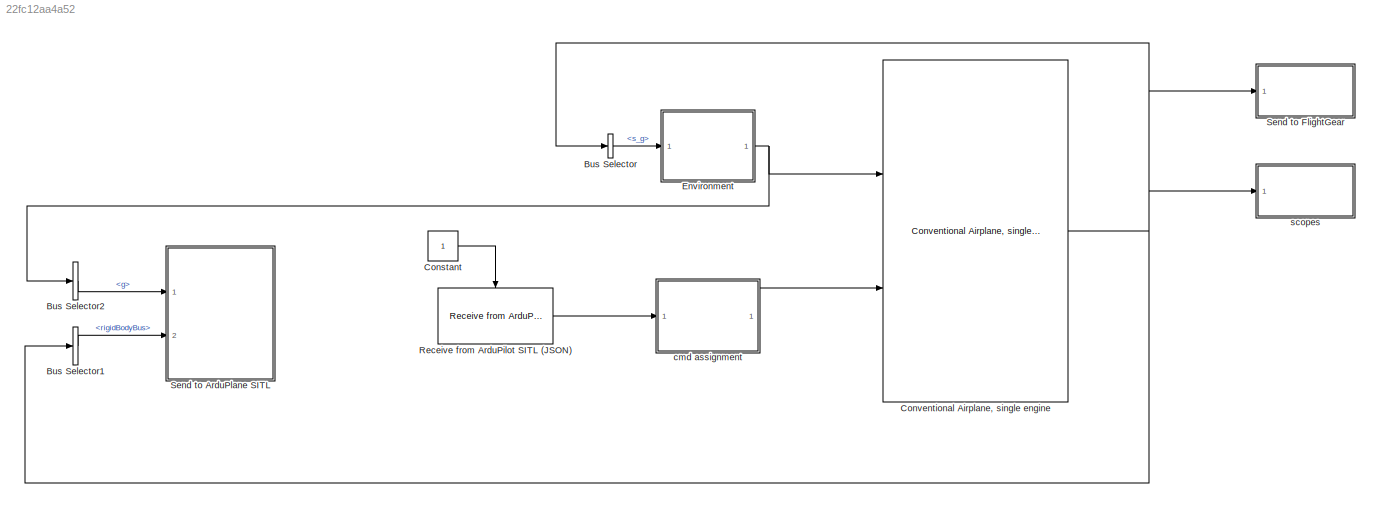
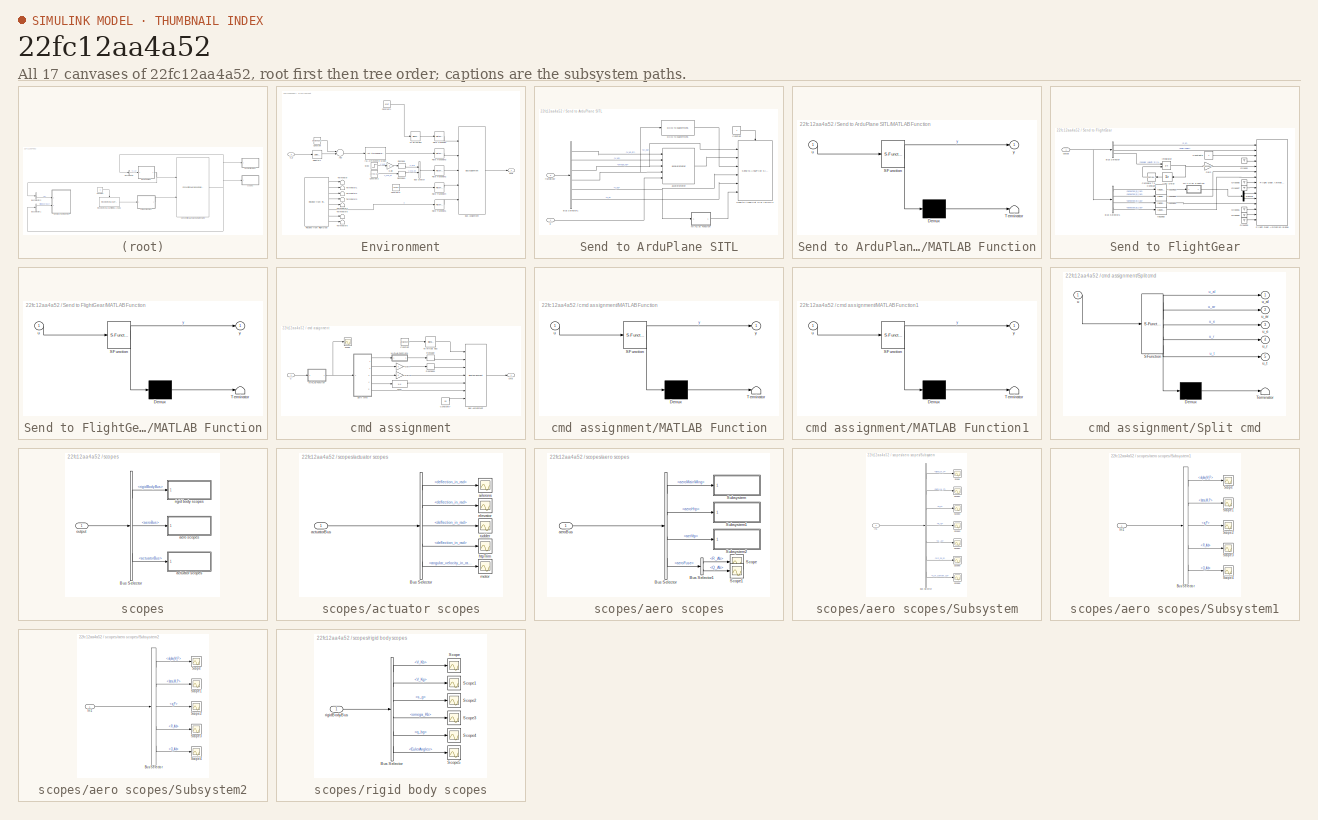
[diagram: thumbnail index - all 17 canvases of the model, root first then tree order]
MODEL slx_22fc12aa4a52
KIND model
CONFIG AbsTol = auto
CONFIG EnableMultiTasking = off
CONFIG FixedStep = 0.0025
CONFIG MaxStep = auto
CONFIG MinStep = auto
CONFIG RelTol = 1e-3
CONFIG SampleTimeConstraint = Unconstrained
CONFIG Solver = ode1
CONFIG SolverName = ode1
CONFIG StartTime = 0.0
CONFIG StopTime = 100.0
BLOCK [BusSelector] Bus Selector
  OutputAsBus = off
  OutputSignals = rigidBodyBus.s_g
  Ports = [1, 1]
BLOCK [BusSelector] Bus Selector1
  OutputAsBus = off
  OutputSignals = rigidBodyBus
  Ports = [1, 1]
BLOCK [BusSelector] Bus Selector2
  OutputAsBus = off
  OutputSignals = g
  Ports = [1, 1]
BLOCK [Constant] Constant
BLOCK [Reference] Conventional Airplane, single engine  REF=conventional_airplane_single_engine_lib/Conventional Airplane,  (lib defined in slx_fd2fac8ad290)
single engine
  Ports = [2, 1]
  SourceBlock = conventional_airplane_single_engine_lib/Conventional Airplane,\nsingle engine
  SourceProductName = LADAC
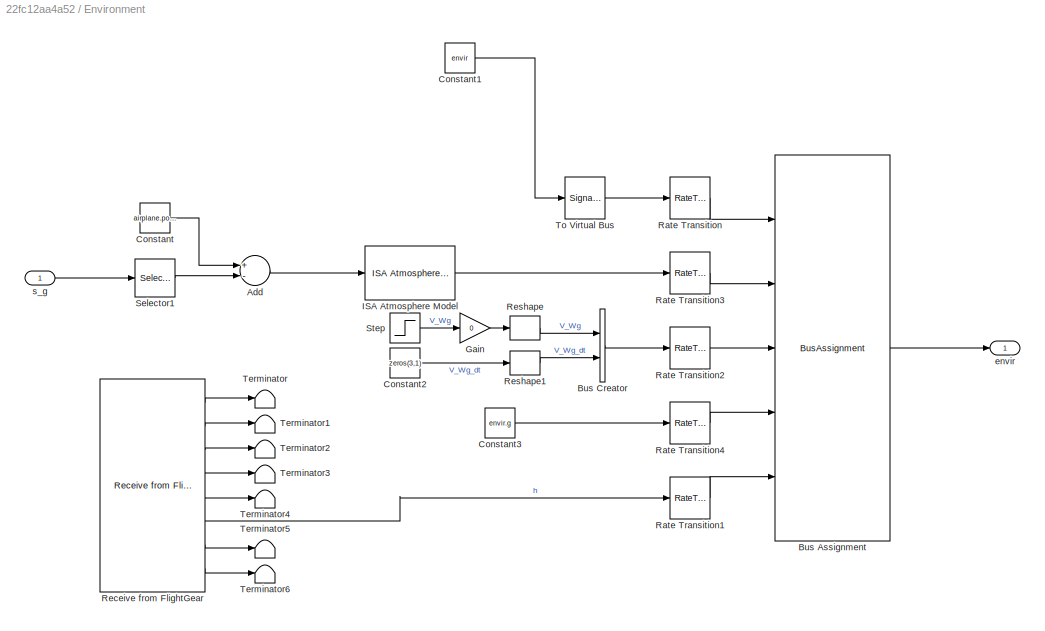
BLOCK [SubSystem] Environment
  Ports = [1, 1]
  RequestExecContextInheritance = off
BLOCK [Sum] Environment/Add
  InputSameDT = off
  Inputs = +-
  OutDataTypeStr = Inherit: Inherit via internal rule
  Ports = [2, 1]
  SaturateOnIntegerOverflow = off
BLOCK [BusAssignment] Environment/Bus Assignment
  AssignedSignals = atmosphere,wind,g,alt_ground
  Ports = [5, 1]
BLOCK [BusCreator] Environment/Bus Creator
  DisplayOption = bar
  InheritFromInputs = on
  Inputs = 2
  Ports = [2, 1]
BLOCK [Constant] Environment/Constant
  Value = airplane.posRef.alt
BLOCK [Constant] Environment/Constant1
  OutDataTypeStr = Bus: envirBus
  Value = envir
BLOCK [Constant] Environment/Constant2
  Value = zeros(3,1)
BLOCK [Constant] Environment/Constant3
  Value = envir.g
BLOCK [Gain] Environment/Gain
  Gain = 0
  OutDataTypeStr = Inherit: Inherit via internal rule
  ParamDataTypeStr = Inherit: Inherit via internal rule
  SaturateOnIntegerOverflow = off
BLOCK [Reference] Environment/ISA Atmosphere Model  REF=atmosphere_lib/ISA Atmosphere Model  (lib defined in slx_398a0eb2fa35)
  Ports = [1, 1]
  SourceBlock = atmosphere_lib/ISA Atmosphere Model
  SourceProductName = LADAC
BLOCK [RateTransition] Environment/Rate Transition
BLOCK [RateTransition] Environment/Rate Transition1
BLOCK [RateTransition] Environment/Rate Transition2
BLOCK [RateTransition] Environment/Rate Transition3
BLOCK [RateTransition] Environment/Rate Transition4
BLOCK [Reference] Environment/Receive from FlightGear  REF=flightgear_visualization_lib/Receive from FlightGear  (lib defined in slx_722f04e3a3fc)
  Ports = [0, 8]
  SourceBlock = flightgear_visualization_lib/Receive from FlightGear
  SourceProductName = LADAC
BLOCK [Reshape] Environment/Reshape
  OutputDimensionality = Column vector (2-D)
  Ports = [1, 1]
BLOCK [Reshape] Environment/Reshape1
  OutputDimensionality = Column vector (2-D)
  Ports = [1, 1]
BLOCK [Selector] Environment/Selector1
  IndexOptions = Index vector (dialog)
  Indices = 3
  InputPortWidth = 3
  OutputSizes = 1
  Ports = [1, 1]
BLOCK [Step] Environment/Step
  After = [0;10;0]
  SampleTime = 0
  Time = 3
BLOCK [Terminator] Environment/Terminator
BLOCK [Terminator] Environment/Terminator1
BLOCK [Terminator] Environment/Terminator2
BLOCK [Terminator] Environment/Terminator3
BLOCK [Terminator] Environment/Terminator4
BLOCK [Terminator] Environment/Terminator5
BLOCK [Terminator] Environment/Terminator6
BLOCK [SignalConversion] Environment/To Virtual Bus
  ConversionOutput = Virtual bus
  OverrideOpt = off
BLOCK [Outport] Environment/envir
  IconDisplay = Port number
BLOCK [Inport] Environment/s_g
  IconDisplay = Port number
BLOCK [Reference] Receive from ArduPilot SITL (JSON)  REF=ardupilot_sitl_lib/Receive from ArduPilot SITL (JSON)  (lib defined in slx_448b01335727)
  Ports = [0, 1, 1]
  SourceBlock = ardupilot_sitl_lib/Receive from ArduPilot SITL (JSON)
  SourceProductName = LADAC
BLOCK [SubSystem] Send to ArduPlane SITL
  Ports = [2]
  RequestExecContextInheritance = off
BLOCK [BusSelector] Send to ArduPlane SITL/Bus Selector1
  OutputAsBus = off
  OutputSignals = V_Kb_dt,V_Kb,omega_Kb,M_bg,V_Kg,s_g
  Ports = [1, 6]
BLOCK [Constant] Send to ArduPlane SITL/Constant
BLOCK [Reference] Send to ArduPlane SITL/DCM to quaternions  REF=axes_transformation_lib/DCM to quaternions  (lib defined in slx_69e2413c78c0)
  Ports = [1, 1]
  SourceBlock = axes_transformation_lib/DCM to quaternions
  SourceProductName = LADAC
  SourceType = SubSystem
BLOCK [SubSystem] Send to ArduPlane SITL/MATLAB Function
  ErrorFcn = Stateflow.Translate.translate
  PermitHierarchicalResolution = ExplicitOnly
  Ports = [1, 1]
  RequestExecContextInheritance = off
  SFBlockType = MATLAB Function
  TreatAsAtomicUnit = on
BLOCK [Demux] Send to ArduPlane SITL/MATLAB Function/ Demux 
  Outputs = 1
  Ports = [1, 1]
BLOCK [S-Function] Send to ArduPlane SITL/MATLAB Function/ SFunction 
  EnableBusSupport = on
  FunctionName = sf_sfun
  PortCounts = [1 2]
  Ports = [1, 2]
  SFcnIsStateOwnerBlock = off
  SFunctionDeploymentMode = off
  Tag = Stateflow S-Function AirplaneSimModel_SITL 2
BLOCK [Terminator] Send to ArduPlane SITL/MATLAB Function/ Terminator 
BLOCK [Inport] Send to ArduPlane SITL/MATLAB Function/u
  IconDisplay = Port number
BLOCK [Outport] Send to ArduPlane SITL/MATLAB Function/y
  IconDisplay = Port number
BLOCK [Reference] Send to ArduPlane SITL/Send to ArduPilot SITL (JSON)1  REF=ardupilot_sitl_lib/Send to ArduPilot SITL (JSON)  (lib defined in slx_448b01335727)
  Ports = [6, 0, 1]
  SourceBlock = ardupilot_sitl_lib/Send to ArduPilot SITL (JSON)
  SourceProductName = LADAC
BLOCK [Reference] Send to ArduPlane SITL/accelerometer  REF=sensors_lib/accelerometer  (lib defined in mdl_052e9be48c24, mdl_88e42053cf8c, +1 more)
  Ports = [5, 1]
  SourceBlock = sensors_lib/accelerometer
  SourceProductName = LADAC
  SourceType = SubSystem
BLOCK [Inport] Send to ArduPlane SITL/g
  IconDisplay = Port number
BLOCK [Inport] Send to ArduPlane SITL/rigidBody
  IconDisplay = Port number
  Port = 2
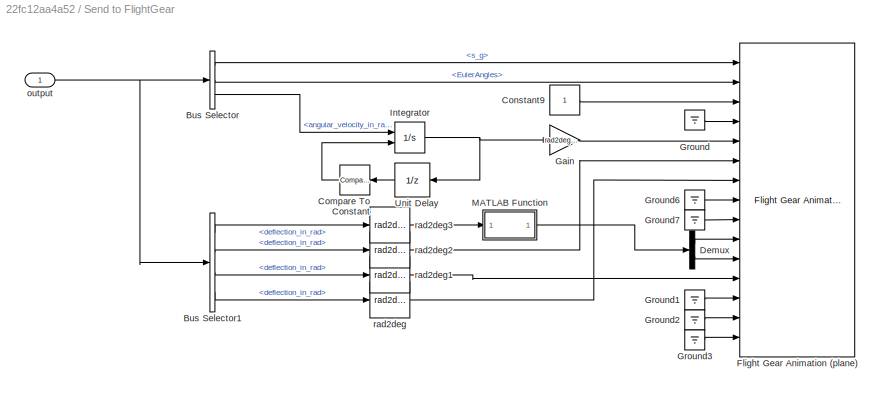
BLOCK [SubSystem] Send to FlightGear
  Ports = [1]
  RequestExecContextInheritance = off
BLOCK [BusSelector] Send to FlightGear/Bus Selector
  OutputAsBus = off
  OutputSignals = rigidBodyBus.s_g,rigidBodyBus.EulerAngles,actuatorBus.motorBus.angular_velocity_in_rad_per_s
  Ports = [1, 3]
BLOCK [BusSelector] Send to FlightGear/Bus Selector1
  OutputAsBus = off
  OutputSignals = actuatorBus.aileronsBus.deflection_in_rad,actuatorBus.elevatorBus.deflection_in_rad,actuatorBus.rudderBus.deflection_in_rad,actuatorBus.htpTrimBus.deflection_in_rad
  Ports = [1, 4]
BLOCK [Reference] Send to FlightGear/Compare To Constant  REF=simulink/Logic and Bit
Operations/Compare
To Constant
  Ports = [1, 1]
  SourceBlock = simulink/Logic and Bit\nOperations/Compare\nTo Constant
  SourceProductBaseCode = SL
  SourceProductName = Simulink
  SourceType = Compare To Constant
BLOCK [Constant] Send to FlightGear/Constant9
BLOCK [Demux] Send to FlightGear/Demux
  DisplayOption = bar
  Outputs = 2
  Ports = [1, 2]
BLOCK [Reference] Send to FlightGear/Flight Gear Animation (plane)  REF=flightgear_visualization_lib/Flight Gear Animation (plane)  (lib defined in slx_722f04e3a3fc)
  Ports = [15]
  SourceBlock = flightgear_visualization_lib/Flight Gear Animation (plane)
  SourceProductName = LADAC
BLOCK [Gain] Send to FlightGear/Gain
  Gain = rad2deg([1;0;0;0])
  OutDataTypeStr = Inherit: Inherit via internal rule
  ParamDataTypeStr = Inherit: Inherit via internal rule
  SaturateOnIntegerOverflow = off
BLOCK [Ground] Send to FlightGear/Ground
BLOCK [Ground] Send to FlightGear/Ground1
BLOCK [Ground] Send to FlightGear/Ground2
BLOCK [Ground] Send to FlightGear/Ground3
BLOCK [Ground] Send to FlightGear/Ground6
BLOCK [Ground] Send to FlightGear/Ground7
BLOCK [Integrator] Send to FlightGear/Integrator
  ExternalReset = rising
  Ports = [2, 1]
BLOCK [SubSystem] Send to FlightGear/MATLAB Function
  ErrorFcn = Stateflow.Translate.translate
  PermitHierarchicalResolution = ExplicitOnly
  Ports = [1, 1]
  RequestExecContextInheritance = off
  SFBlockType = MATLAB Function
  TreatAsAtomicUnit = on
BLOCK [Demux] Send to FlightGear/MATLAB Function/ Demux 
  Outputs = 1
  Ports = [1, 1]
BLOCK [S-Function] Send to FlightGear/MATLAB Function/ SFunction 
  EnableBusSupport = on
  FunctionName = sf_sfun
  PortCounts = [1 2]
  Ports = [1, 2]
  SFcnIsStateOwnerBlock = off
  SFunctionDeploymentMode = off
  Tag = Stateflow S-Function AirplaneSimModel_SITL 3
BLOCK [Terminator] Send to FlightGear/MATLAB Function/ Terminator 
BLOCK [Inport] Send to FlightGear/MATLAB Function/u
  IconDisplay = Port number
BLOCK [Outport] Send to FlightGear/MATLAB Function/y
  IconDisplay = Port number
BLOCK [UnitDelay] Send to FlightGear/Unit Delay
  InputProcessing = Elements as channels (sample based)
  SampleTime = -1
BLOCK [Inport] Send to FlightGear/output
  IconDisplay = Port number
BLOCK [Reference] Send to FlightGear/rad2deg  REF=unit_conversions_lib/rad2deg  (lib defined in slx_ae2855d4d91e)
  Ports = [1, 1]
  SourceBlock = unit_conversions_lib/rad2deg
  SourceProductName = LADAC
BLOCK [Reference] Send to FlightGear/rad2deg1  REF=unit_conversions_lib/rad2deg  (lib defined in slx_ae2855d4d91e)
  Ports = [1, 1]
  SourceBlock = unit_conversions_lib/rad2deg
  SourceProductName = LADAC
BLOCK [Reference] Send to FlightGear/rad2deg2  REF=unit_conversions_lib/rad2deg  (lib defined in slx_ae2855d4d91e)
  Ports = [1, 1]
  SourceBlock = unit_conversions_lib/rad2deg
  SourceProductName = LADAC
BLOCK [Reference] Send to FlightGear/rad2deg3  REF=unit_conversions_lib/rad2deg  (lib defined in slx_ae2855d4d91e)
  Ports = [1, 1]
  SourceBlock = unit_conversions_lib/rad2deg
  SourceProductName = LADAC
BLOCK [SubSystem] cmd assignment
  Ports = [1, 1]
  RequestExecContextInheritance = off
BLOCK [BusAssignment] cmd assignment/Bus Assignment
  AssignedSignals = aileron_left,aileron_right,elevator,rudder,throttle,htp_trim
  Ports = [7, 1]
BLOCK [Constant] cmd assignment/Constant
  OutDataTypeStr = Bus: cmdBus
  Value = airplane.cmd
BLOCK [Constant] cmd assignment/Constant7
  Value = 0.5
BLOCK [Fcn] cmd assignment/Fcn2
  Expr = 1-u
BLOCK [Gain] cmd assignment/Gain
  OutDataTypeStr = Inherit: Inherit via internal rule
  ParamDataTypeStr = Inherit: Inherit via internal rule
  SaturateOnIntegerOverflow = off
BLOCK [Gain] cmd assignment/Gain1
  OutDataTypeStr = Inherit: Inherit via internal rule
  ParamDataTypeStr = Inherit: Inherit via internal rule
  SaturateOnIntegerOverflow = off
BLOCK [SubSystem] cmd assignment/MATLAB Function
  ErrorFcn = Stateflow.Translate.translate
  PermitHierarchicalResolution = ExplicitOnly
  Ports = [1, 1]
  RequestExecContextInheritance = off
  SFBlockType = MATLAB Function
  TreatAsAtomicUnit = on
BLOCK [Demux] cmd assignment/MATLAB Function/ Demux 
  Outputs = 1
  Ports = [1, 1]
BLOCK [S-Function] cmd assignment/MATLAB Function/ SFunction 
  EnableBusSupport = on
  FunctionName = sf_sfun
  PortCounts = [1 2]
  Ports = [1, 2]
  SFcnIsStateOwnerBlock = off
  SFunctionDeploymentMode = off
  Tag = Stateflow S-Function AirplaneSimModel_SITL 4
BLOCK [Terminator] cmd assignment/MATLAB Function/ Terminator 
BLOCK [Inport] cmd assignment/MATLAB Function/u
  IconDisplay = Port number
BLOCK [Outport] cmd assignment/MATLAB Function/y
  IconDisplay = Port number
BLOCK [SubSystem] cmd assignment/MATLAB Function1
  ErrorFcn = Stateflow.Translate.translate
  PermitHierarchicalResolution = ExplicitOnly
  Ports = [1, 1]
  RequestExecContextInheritance = off
  SFBlockType = MATLAB Function
  TreatAsAtomicUnit = on
BLOCK [Demux] cmd assignment/MATLAB Function1/ Demux 
  Outputs = 1
  Ports = [1, 1]
BLOCK [S-Function] cmd assignment/MATLAB Function1/ SFunction 
  EnableBusSupport = on
  FunctionName = sf_sfun
  PortCounts = [1 2]
  Ports = [1, 2]
  SFcnIsStateOwnerBlock = off
  SFunctionDeploymentMode = off
  Tag = Stateflow S-Function AirplaneSimModel_SITL 1
BLOCK [Terminator] cmd assignment/MATLAB Function1/ Terminator 
BLOCK [Inport] cmd assignment/MATLAB Function1/u
  IconDisplay = Port number
BLOCK [Outport] cmd assignment/MATLAB Function1/y
  IconDisplay = Port number
BLOCK [Reshape] cmd assignment/Reshape
  OutputDimensionality = Row vector (2-D)
  Ports = [1, 1]
BLOCK [Reshape] cmd assignment/Reshape1
  OutputDimensionality = Row vector (2-D)
  Ports = [1, 1]
BLOCK [Scope] cmd assignment/Scope
  Floating = off
  NumInputPorts = 1
  Ports = [1]
  ScopeSpecificationString = Simulink.scopes.TimeScopeBlockCfg('CurrentConfiguration', extmgr.ConfigurationSet(extmgr.Configuration('Core','General UI',true),extmgr.Configuration('Core','Source UI',true),extmgr.Configuration('Sources','WiredSimulink',true,'DataLoggingVariableName','ScopeData1'),extmgr.Configuration('Visuals','Time Domain',true,'SerializedDisplays',{struct('MinYLimReal','-0.00016','MaxYLimReal','0.00141','YLab...<+1929ch>
BLOCK [SubSystem] cmd assignment/Split cmd
  ErrorFcn = Stateflow.Translate.translate
  PermitHierarchicalResolution = ExplicitOnly
  Ports = [1, 5]
  RequestExecContextInheritance = off
  SFBlockType = MATLAB Function
  TreatAsAtomicUnit = on
BLOCK [Demux] cmd assignment/Split cmd/ Demux 
  Outputs = 1
  Ports = [1, 1]
BLOCK [S-Function] cmd assignment/Split cmd/ SFunction 
  EnableBusSupport = on
  FunctionName = sf_sfun
  PortCounts = [1 6]
  Ports = [1, 6]
  SFcnIsStateOwnerBlock = off
  SFunctionDeploymentMode = off
  Tag = Stateflow S-Function AirplaneSimModel_SITL 5
BLOCK [Terminator] cmd assignment/Split cmd/ Terminator 
BLOCK [Inport] cmd assignment/Split cmd/u
  IconDisplay = Port number
BLOCK [Outport] cmd assignment/Split cmd/u_al
  IconDisplay = Port number
BLOCK [Outport] cmd assignment/Split cmd/u_ar
  IconDisplay = Port number
  Port = 2
BLOCK [Outport] cmd assignment/Split cmd/u_e
  IconDisplay = Port number
  Port = 3
BLOCK [Outport] cmd assignment/Split cmd/u_r
  IconDisplay = Port number
  Port = 4
BLOCK [Outport] cmd assignment/Split cmd/u_t
  IconDisplay = Port number
  Port = 5
BLOCK [SignalConversion] cmd assignment/To Virtual Bus
  ConversionOutput = Virtual bus
  OverrideOpt = off
BLOCK [Outport] cmd assignment/cmd
  IconDisplay = Port number
BLOCK [Inport] cmd assignment/u
  IconDisplay = Port number
BLOCK [SubSystem] scopes
  Ports = [1]
  RequestExecContextInheritance = off
BLOCK [BusSelector] scopes/Bus Selector
  OutputAsBus = off
  OutputSignals = rigidBodyBus,aeroBus,actuatorBus
  Ports = [1, 3]
BLOCK [SubSystem] scopes/actuator scopes
  Ports = [1]
  RequestExecContextInheritance = off
BLOCK [BusSelector] scopes/actuator scopes/Bus Selector
  OutputAsBus = off
  OutputSignals = aileronsBus.deflection_in_rad,elevatorBus.deflection_in_rad,rudderBus.deflection_in_rad,htpTrimBus.deflection_in_rad,motorBus.angular_velocity_in_rad_per_s
  Ports = [1, 5]
BLOCK [Inport] scopes/actuator scopes/actuatorBus
  IconDisplay = Port number
BLOCK [Scope] scopes/actuator scopes/ailerons
  Floating = off
  NumInputPorts = 1
  Ports = [1]
  ScopeSpecificationString = Simulink.scopes.TimeScopeBlockCfg('CurrentConfiguration', extmgr.ConfigurationSet(extmgr.Configuration('Core','General UI',true),extmgr.Configuration('Core','Source UI',true),extmgr.Configuration('Sources','WiredSimulink',true,'DataLoggingVariableName','ScopeData1'),extmgr.Configuration('Visuals','Time Domain',true,'SerializedDisplays',{struct('MinYLimReal','-0.53451','MaxYLimReal','0.44724','YLab...<+1502ch>
BLOCK [Scope] scopes/actuator scopes/elevator
  Floating = off
  NumInputPorts = 1
  Ports = [1]
  ScopeSpecificationString = Simulink.scopes.TimeScopeBlockCfg('CurrentConfiguration', extmgr.ConfigurationSet(extmgr.Configuration('Core','General UI',true),extmgr.Configuration('Core','Source UI',true),extmgr.Configuration('Sources','WiredSimulink',true,'DataLoggingVariableName','ScopeData2'),extmgr.Configuration('Visuals','Time Domain',true,'SerializedDisplays',{struct('MinYLimReal','-0.08767','MaxYLimReal','0.09093','YLab...<+1433ch>
BLOCK [Scope] scopes/actuator scopes/htpTrim
  Floating = off
  NumInputPorts = 1
  Ports = [1]
  ScopeSpecificationString = Simulink.scopes.TimeScopeBlockCfg('CurrentConfiguration', extmgr.ConfigurationSet(extmgr.Configuration('Core','General UI',true),extmgr.Configuration('Core','Source UI',true),extmgr.Configuration('Sources','WiredSimulink',true,'DataLoggingVariableName','ScopeData4'),extmgr.Configuration('Visuals','Time Domain',true,'SerializedDisplays',{struct('MinYLimReal','-0.00393','MaxYLimReal','0.03536','YLab...<+1422ch>
BLOCK [Scope] scopes/actuator scopes/motor
  Floating = off
  NumInputPorts = 1
  Ports = [1]
  ScopeSpecificationString = Simulink.scopes.TimeScopeBlockCfg('CurrentConfiguration', extmgr.ConfigurationSet(extmgr.Configuration('Core','General UI',true),extmgr.Configuration('Core','Source UI',true),extmgr.Configuration('Sources','WiredSimulink',true,'DataLoggingVariableName','ScopeData5'),extmgr.Configuration('Visuals','Time Domain',true,'SerializedDisplays',{struct('MinYLimReal','-152.43792','MaxYLimReal','16.93891','Y...<+1427ch>
BLOCK [Scope] scopes/actuator scopes/rudder
  Floating = off
  NumInputPorts = 1
  Ports = [1]
  ScopeSpecificationString = Simulink.scopes.TimeScopeBlockCfg('CurrentConfiguration', extmgr.ConfigurationSet(extmgr.Configuration('Core','General UI',true),extmgr.Configuration('Core','Source UI',true),extmgr.Configuration('Sources','WiredSimulink',true,'DataLoggingVariableName','ScopeData3'),extmgr.Configuration('Visuals','Time Domain',true,'SerializedDisplays',{struct('MinYLimReal','-0.1315','MaxYLimReal','0.13639','YLabe...<+1376ch>
BLOCK [SubSystem] scopes/aero scopes
  Commented = on
  Ports = [1]
  RequestExecContextInheritance = off
BLOCK [BusSelector] scopes/aero scopes/Bus Selector
  OutputAsBus = off
  OutputSignals = aeroMainWing,aeroHtp,aerVtp,aeroFuse
  Ports = [1, 4]
BLOCK [BusSelector] scopes/aero scopes/Bus Selector1
  OutputAsBus = off
  OutputSignals = R_Ab,Q_Ab
  Ports = [1, 2]
BLOCK [Scope] scopes/aero scopes/Scope
  Floating = off
  NumInputPorts = 1
  Ports = [1]
  ScopeSpecificationString = Simulink.scopes.TimeScopeBlockCfg('CurrentConfiguration', extmgr.ConfigurationSet(extmgr.Configuration('Core','General UI',true),extmgr.Configuration('Core','Source UI',true),extmgr.Configuration('Sources','WiredSimulink',true,'DataLoggingVariableName','ScopeData8'),extmgr.Configuration('Visuals','Time Domain',true,'SerializedDisplays',{struct('MinYLimReal','-0.91646','MaxYLimReal','0.40451','YLab...<+1441ch>
BLOCK [Scope] scopes/aero scopes/Scope1
  Floating = off
  NumInputPorts = 1
  Ports = [1]
  ScopeSpecificationString = Simulink.scopes.TimeScopeBlockCfg('CurrentConfiguration', extmgr.ConfigurationSet(extmgr.Configuration('Core','General UI',true),extmgr.Configuration('Core','Source UI',true),extmgr.Configuration('Sources','WiredSimulink',true,'DataLoggingVariableName','ScopeData9'),extmgr.Configuration('Visuals','Time Domain',true,'SerializedDisplays',{struct('MinYLimReal','-0.00779','MaxYLimReal','0.00515','YLab...<+1460ch>
BLOCK [SubSystem] scopes/aero scopes/Subsystem
  Ports = [1]
  RequestExecContextInheritance = off
BLOCK [BusSelector] scopes/aero scopes/Subsystem/Bus Selector
  OutputAsBus = off
  OutputSignals = aeroAxes.alpha_M_P,aeroAxes.beta_M_P,aeroAxes.q_P,dynamics.R_Ab,dynamics.Q_Ab,dynamics.xyz_np_b,dynamics.C_m_camber_cg
  Ports = [1, 7]
BLOCK [Inport] scopes/aero scopes/Subsystem/In1
  IconDisplay = Port number
BLOCK [Scope] scopes/aero scopes/Subsystem/Scope
  Floating = off
  NumInputPorts = 1
  Ports = [1]
  ScopeSpecificationString = Simulink.scopes.TimeScopeBlockCfg('CurrentConfiguration', extmgr.ConfigurationSet(extmgr.Configuration('Core','General UI',true),extmgr.Configuration('Core','Source UI',true),extmgr.Configuration('Sources','WiredSimulink',true,'DataLoggingVariableName','ScopeData3'),extmgr.Configuration('Visuals','Time Domain',true,'SerializedDisplays',{struct('MinYLimReal','-0.07904','MaxYLimReal','0.46983','YLab...<+1432ch>
BLOCK [Scope] scopes/aero scopes/Subsystem/Scope1
  Floating = off
  NumInputPorts = 1
  Ports = [1]
  ScopeSpecificationString = Simulink.scopes.TimeScopeBlockCfg('CurrentConfiguration', extmgr.ConfigurationSet(extmgr.Configuration('Core','General UI',true),extmgr.Configuration('Core','Source UI',true),extmgr.Configuration('Sources','WiredSimulink',true,'DataLoggingVariableName','ScopeData4'),extmgr.Configuration('Visuals','Time Domain',true,'SerializedDisplays',{struct('MinYLimReal','-0.33134','MaxYLimReal','0.51679','YLab...<+1411ch>
BLOCK [Scope] scopes/aero scopes/Subsystem/Scope2
  Floating = off
  NumInputPorts = 1
  Ports = [1]
  ScopeSpecificationString = Simulink.scopes.TimeScopeBlockCfg('CurrentConfiguration', extmgr.ConfigurationSet(extmgr.Configuration('Core','General UI',true),extmgr.Configuration('Core','Source UI',true),extmgr.Configuration('Sources','WiredSimulink',true,'DataLoggingVariableName','ScopeData5'),extmgr.Configuration('Visuals','Time Domain',true),extmgr.Configuration('Tools','Plot Navigation',true),extmgr.Configuration('Tools',...<+40ch>  <repeated x3 — deduplicated; at blocks: Scope2, Scope4>
BLOCK [Scope] scopes/aero scopes/Subsystem/Scope3
  Floating = off
  NumInputPorts = 1
  Ports = [1]
  ScopeSpecificationString = Simulink.scopes.TimeScopeBlockCfg('CurrentConfiguration', extmgr.ConfigurationSet(extmgr.Configuration('Core','General UI',true),extmgr.Configuration('Core','Source UI',true),extmgr.Configuration('Sources','WiredSimulink',true,'DataLoggingVariableName','ScopeData6'),extmgr.Configuration('Visuals','Time Domain',true,'SerializedDisplays',{struct('MinYLimReal','-44.41944','MaxYLimReal','10.15561','YL...<+1450ch>
BLOCK [Scope] scopes/aero scopes/Subsystem/Scope4
  Floating = off
  NumInputPorts = 1
  Ports = [1]
  ScopeSpecificationString = Simulink.scopes.TimeScopeBlockCfg('CurrentConfiguration', extmgr.ConfigurationSet(extmgr.Configuration('Core','General UI',true),extmgr.Configuration('Core','Source UI',true),extmgr.Configuration('Sources','WiredSimulink',true,'DataLoggingVariableName','ScopeData7'),extmgr.Configuration('Visuals','Time Domain',true,'SerializedDisplays',{struct('MinYLimReal','-1.14355','MaxYLimReal','0.48604','YLab...<+1458ch>
BLOCK [Scope] scopes/aero scopes/Subsystem/Scope5
  Floating = off
  NumInputPorts = 1
  Ports = [1]
  ScopeSpecificationString = Simulink.scopes.TimeScopeBlockCfg('CurrentConfiguration', extmgr.ConfigurationSet(extmgr.Configuration('Core','General UI',true),extmgr.Configuration('Core','Source UI',true),extmgr.Configuration('Sources','WiredSimulink',true,'DataLoggingVariableName','ScopeData12'),extmgr.Configuration('Visuals','Time Domain',true,'SerializedDisplays',{struct('MinYLimReal','-0.7438','MaxYLimReal','0.72425','YLab...<+1652ch>
BLOCK [Scope] scopes/aero scopes/Subsystem/Scope6
  Floating = off
  NumInputPorts = 1
  Ports = [1]
  ScopeSpecificationString = Simulink.scopes.TimeScopeBlockCfg('CurrentConfiguration', extmgr.ConfigurationSet(extmgr.Configuration('Core','General UI',true),extmgr.Configuration('Core','Source UI',true),extmgr.Configuration('Sources','WiredSimulink',true,'DataLoggingVariableName','ScopeData1'),extmgr.Configuration('Visuals','Time Domain',true,'SerializedDisplays',{struct('MinYLimReal','-0.11083','MaxYLimReal','0.05149','YLab...<+1602ch>
BLOCK [SubSystem] scopes/aero scopes/Subsystem1
  Ports = [1]
  RequestExecContextInheritance = off
BLOCK [BusSelector] scopes/aero scopes/Subsystem1/Bus Selector
  OutputAsBus = off
  OutputSignals = aeroAxes.alpha_M_P,aeroAxes.beta_M_P,aeroAxes.q_P,dynamics.R_Ab,dynamics.Q_Ab
  Ports = [1, 5]
BLOCK [Inport] scopes/aero scopes/Subsystem1/In1
  IconDisplay = Port number
BLOCK [Scope] scopes/aero scopes/Subsystem1/Scope
  Floating = off
  NumInputPorts = 1
  Ports = [1]
  ScopeSpecificationString = Simulink.scopes.TimeScopeBlockCfg('CurrentConfiguration', extmgr.ConfigurationSet(extmgr.Configuration('Core','General UI',true),extmgr.Configuration('Core','Source UI',true),extmgr.Configuration('Sources','WiredSimulink',true,'DataLoggingVariableName','ScopeData3'),extmgr.Configuration('Visuals','Time Domain',true,'SerializedDisplays',{struct('MinYLimReal','-0.03108','MaxYLimReal','0.08387','YLab...<+1432ch>
BLOCK [Scope] scopes/aero scopes/Subsystem1/Scope1
  Floating = off
  NumInputPorts = 1
  Ports = [1]
  ScopeSpecificationString = Simulink.scopes.TimeScopeBlockCfg('CurrentConfiguration', extmgr.ConfigurationSet(extmgr.Configuration('Core','General UI',true),extmgr.Configuration('Core','Source UI',true),extmgr.Configuration('Sources','WiredSimulink',true,'DataLoggingVariableName','ScopeData4'),extmgr.Configuration('Visuals','Time Domain',true,'SerializedDisplays',{struct('MinYLimReal','-0.40678','MaxYLimReal','0.98354','YLab...<+1430ch>
BLOCK [Scope] scopes/aero scopes/Subsystem1/Scope2
  Floating = off
  NumInputPorts = 1
  Ports = [1]
  ScopeSpecificationString = Simulink.scopes.TimeScopeBlockCfg('CurrentConfiguration', extmgr.ConfigurationSet(extmgr.Configuration('Core','General UI',true),extmgr.Configuration('Core','Source UI',true),extmgr.Configuration('Sources','WiredSimulink',true,'DataLoggingVariableName','ScopeData5'),extmgr.Configuration('Visuals','Time Domain',true,'SerializedDisplays',{struct('MinYLimReal','165.0715','MaxYLimReal','265.67716','YL...<+1386ch>
BLOCK [Scope] scopes/aero scopes/Subsystem1/Scope3
  Floating = off
  NumInputPorts = 1
  Ports = [1]
  ScopeSpecificationString = Simulink.scopes.TimeScopeBlockCfg('CurrentConfiguration', extmgr.ConfigurationSet(extmgr.Configuration('Core','General UI',true),extmgr.Configuration('Core','Source UI',true),extmgr.Configuration('Sources','WiredSimulink',true,'DataLoggingVariableName','ScopeData6'),extmgr.Configuration('Visuals','Time Domain',true,'SerializedDisplays',{struct('MinYLimReal','-1.25595','MaxYLimReal','0.52297','YLab...<+1431ch>
BLOCK [Scope] scopes/aero scopes/Subsystem1/Scope4
  Floating = off
  NumInputPorts = 1
  Ports = [1]
  ScopeSpecificationString = Simulink.scopes.TimeScopeBlockCfg('CurrentConfiguration', extmgr.ConfigurationSet(extmgr.Configuration('Core','General UI',true),extmgr.Configuration('Core','Source UI',true),extmgr.Configuration('Sources','WiredSimulink',true,'DataLoggingVariableName','ScopeData7'),extmgr.Configuration('Visuals','Time Domain',true,'SerializedDisplays',{struct('MinYLimReal','-1.24313','MaxYLimReal','0.67063','YLab...<+1458ch>
BLOCK [SubSystem] scopes/aero scopes/Subsystem2
  Ports = [1]
  RequestExecContextInheritance = off
BLOCK [BusSelector] scopes/aero scopes/Subsystem2/Bus Selector
  OutputAsBus = off
  OutputSignals = aeroAxes.alpha_M_P,aeroAxes.beta_M_P,aeroAxes.q_P,dynamicsBody.R_Ab,dynamicsBody.Q_Ab
  Ports = [1, 5]
BLOCK [Inport] scopes/aero scopes/Subsystem2/In1
  IconDisplay = Port number
BLOCK [Scope] scopes/aero scopes/Subsystem2/Scope
  Floating = off
  NumInputPorts = 1
  Ports = [1]
  ScopeSpecificationString = Simulink.scopes.TimeScopeBlockCfg('CurrentConfiguration', extmgr.ConfigurationSet(extmgr.Configuration('Core','General UI',true),extmgr.Configuration('Core','Source UI',true),extmgr.Configuration('Sources','WiredSimulink',true,'DataLoggingVariableName','ScopeData3'),extmgr.Configuration('Visuals','Time Domain',true,'SerializedDisplays',{struct('MinYLimReal','-0.0139','MaxYLimReal','0.08021','YLabe...<+1430ch>
BLOCK [Scope] scopes/aero scopes/Subsystem2/Scope1
  Floating = off
  NumInputPorts = 1
  Ports = [1]
  ScopeSpecificationString = Simulink.scopes.TimeScopeBlockCfg('CurrentConfiguration', extmgr.ConfigurationSet(extmgr.Configuration('Core','General UI',true),extmgr.Configuration('Core','Source UI',true),extmgr.Configuration('Sources','WiredSimulink',true,'DataLoggingVariableName','ScopeData4'),extmgr.Configuration('Visuals','Time Domain',true,'SerializedDisplays',{struct('MinYLimReal','-0.0045','MaxYLimReal','0.04047','YLabe...<+1428ch>
BLOCK [Scope] scopes/aero scopes/Subsystem2/Scope2
  Floating = off
  NumInputPorts = 1
  Ports = [1]
BLOCK [Scope] scopes/aero scopes/Subsystem2/Scope3
  Floating = off
  NumInputPorts = 1
  Ports = [1]
  ScopeSpecificationString = Simulink.scopes.TimeScopeBlockCfg('CurrentConfiguration', extmgr.ConfigurationSet(extmgr.Configuration('Core','General UI',true),extmgr.Configuration('Core','Source UI',true),extmgr.Configuration('Sources','WiredSimulink',true,'DataLoggingVariableName','ScopeData6'),extmgr.Configuration('Visuals','Time Domain',true,'SerializedDisplays',{struct('MinYLimReal','-0.28199','MaxYLimReal','0.15437','YLab...<+1461ch>
BLOCK [Scope] scopes/aero scopes/Subsystem2/Scope4
  Floating = off
  NumInputPorts = 1
  Ports = [1]
  ScopeSpecificationString = Simulink.scopes.TimeScopeBlockCfg('CurrentConfiguration', extmgr.ConfigurationSet(extmgr.Configuration('Core','General UI',true),extmgr.Configuration('Core','Source UI',true),extmgr.Configuration('Sources','WiredSimulink',true,'DataLoggingVariableName','ScopeData7'),extmgr.Configuration('Visuals','Time Domain',true,'SerializedDisplays',{struct('MinYLimReal','-2.40802','MaxYLimReal','1.96386','YLab...<+1529ch>
BLOCK [Inport] scopes/aero scopes/aeroBus
  IconDisplay = Port number
BLOCK [Inport] scopes/output
  IconDisplay = Port number
BLOCK [SubSystem] scopes/rigid body scopes
  Ports = [1]
  RequestExecContextInheritance = off
BLOCK [BusSelector] scopes/rigid body scopes/Bus Selector
  OutputAsBus = off
  OutputSignals = V_Kb,V_Kg,s_g,omega_Kb,q_bg,EulerAngles
  Ports = [1, 6]
BLOCK [Scope] scopes/rigid body scopes/Scope
  Floating = off
  NumInputPorts = 1
  Ports = [1]
  ScopeSpecificationString = Simulink.scopes.TimeScopeBlockCfg('CurrentConfiguration', extmgr.ConfigurationSet(extmgr.Configuration('Core','General UI',true),extmgr.Configuration('Core','Source UI',true),extmgr.Configuration('Sources','WiredSimulink',true,'DataLoggingVariableName','ScopeData1'),extmgr.Configuration('Visuals','Time Domain',true,'SerializedDisplays',{struct('MinYLimReal','-6.20728','MaxYLimReal','25.66694','YLa...<+1418ch>
BLOCK [Scope] scopes/rigid body scopes/Scope1
  Floating = off
  NumInputPorts = 1
  Ports = [1]
  ScopeSpecificationString = Simulink.scopes.TimeScopeBlockCfg('CurrentConfiguration', extmgr.ConfigurationSet(extmgr.Configuration('Core','General UI',true),extmgr.Configuration('Core','Source UI',true),extmgr.Configuration('Sources','WiredSimulink',true,'DataLoggingVariableName','ScopeData2'),extmgr.Configuration('Visuals','Time Domain',true),extmgr.Configuration('Tools','Plot Navigation',true),extmgr.Configuration('Tools',...<+40ch>
BLOCK [Scope] scopes/rigid body scopes/Scope2
  Floating = off
  NumInputPorts = 1
  Ports = [1]
  ScopeSpecificationString = Simulink.scopes.TimeScopeBlockCfg('CurrentConfiguration', extmgr.ConfigurationSet(extmgr.Configuration('Core','General UI',true),extmgr.Configuration('Core','Source UI',true),extmgr.Configuration('Sources','WiredSimulink',true,'DataLoggingVariableName','ScopeData3'),extmgr.Configuration('Visuals','Time Domain',true,'SerializedDisplays',{struct('MinYLimReal','-5.62513','MaxYLimReal','0.62618','YLab...<+1386ch>
BLOCK [Scope] scopes/rigid body scopes/Scope3
  Floating = off
  NumInputPorts = 1
  Ports = [1]
  ScopeSpecificationString = Simulink.scopes.TimeScopeBlockCfg('CurrentConfiguration', extmgr.ConfigurationSet(extmgr.Configuration('Core','General UI',true),extmgr.Configuration('Core','Source UI',true),extmgr.Configuration('Sources','WiredSimulink',true,'DataLoggingVariableName','ScopeData4'),extmgr.Configuration('Visuals','Time Domain',true,'SerializedDisplays',{struct('MinYLimReal','-0.23396','MaxYLimReal','0.30806','YLab...<+1426ch>
BLOCK [Scope] scopes/rigid body scopes/Scope4
  Floating = off
  NumInputPorts = 1
  Ports = [1]
BLOCK [Scope] scopes/rigid body scopes/Scope5
  Floating = off
  NumInputPorts = 1
  Ports = [1]
  ScopeSpecificationString = Simulink.scopes.TimeScopeBlockCfg('CurrentConfiguration', extmgr.ConfigurationSet(extmgr.Configuration('Core','General UI',true),extmgr.Configuration('Core','Source UI',true),extmgr.Configuration('Sources','WiredSimulink',true,'DataLoggingVariableName','ScopeData6'),extmgr.Configuration('Visuals','Time Domain',true,'SerializedDisplays',{struct('MinYLimReal','-0.3003','MaxYLimReal','0.10645','YLabe...<+1431ch>
BLOCK [Inport] scopes/rigid body scopes/rigidBodyBus
  IconDisplay = Port number
LINE Bus Selector1:1 -> Send to ArduPlane SITL:2
LINE Bus Selector2:1 -> Send to ArduPlane SITL:1
LINE Bus Selector:1 -> Environment:1
LINE Constant:1 -> Receive from ArduPilot SITL (JSON):enable
NET Conventional Airplane, single engine:1 -> Bus Selector1:1, Bus Selector:1, Send to FlightGear:1, scopes:1
LINE Environment/Add:1 -> Environment/ISA Atmosphere Model:1
LINE Environment/Bus Assignment:1 -> Environment/envir:1
LINE Environment/Bus Creator:1 -> Environment/Rate Transition2:1
LINE Environment/Constant1:1 -> Environment/To Virtual Bus:1
LINE Environment/Constant2:1 -> Environment/Reshape1:1
LINE Environment/Constant3:1 -> Environment/Rate Transition4:1
LINE Environment/Constant:1 -> Environment/Add:1
LINE Environment/Gain:1 -> Environment/Reshape:1
LINE Environment/ISA Atmosphere Model:1 -> Environment/Rate Transition3:1
LINE Environment/Rate Transition1:1 -> Environment/Bus Assignment:5
LINE Environment/Rate Transition2:1 -> Environment/Bus Assignment:3
LINE Environment/Rate Transition3:1 -> Environment/Bus Assignment:2
LINE Environment/Rate Transition4:1 -> Environment/Bus Assignment:4
LINE Environment/Rate Transition:1 -> Environment/Bus Assignment:1
LINE Environment/Receive from FlightGear:1 -> Environment/Terminator:1
LINE Environment/Receive from FlightGear:2 -> Environment/Terminator1:1
LINE Environment/Receive from FlightGear:3 -> Environment/Terminator2:1
LINE Environment/Receive from FlightGear:4 -> Environment/Terminator3:1
LINE Environment/Receive from FlightGear:5 -> Environment/Terminator4:1
LINE Environment/Receive from FlightGear:6 -> Environment/Rate Transition1:1
LINE Environment/Receive from FlightGear:7 -> Environment/Terminator5:1
LINE Environment/Receive from FlightGear:8 -> Environment/Terminator6:1
LINE Environment/Reshape1:1 -> Environment/Bus Creator:2
LINE Environment/Reshape:1 -> Environment/Bus Creator:1
LINE Environment/Selector1:1 -> Environment/Add:2
LINE Environment/Step:1 -> Environment/Gain:1
LINE Environment/To Virtual Bus:1 -> Environment/Rate Transition:1
LINE Environment/s_g:1 -> Environment/Selector1:1
NET Environment:1 -> Bus Selector2:1, Conventional Airplane, single engine:1
LINE Receive from ArduPilot SITL (JSON):1 -> cmd assignment:1
LINE Send to ArduPlane SITL/Bus Selector1:1 -> Send to ArduPlane SITL/accelerometer:1
LINE Send to ArduPlane SITL/Bus Selector1:2 -> Send to ArduPlane SITL/accelerometer:2
NET Send to ArduPlane SITL/Bus Selector1:3 -> Send to ArduPlane SITL/Send to ArduPilot SITL (JSON)1:1, Send to ArduPlane SITL/accelerometer:3
NET Send to ArduPlane SITL/Bus Selector1:4 -> Send to ArduPlane SITL/DCM to quaternions:1, Send to ArduPlane SITL/accelerometer:4
NET Send to ArduPlane SITL/Bus Selector1:5 -> Send to ArduPlane SITL/MATLAB Function:1, Send to ArduPlane SITL/Send to ArduPilot SITL (JSON)1:4
LINE Send to ArduPlane SITL/Bus Selector1:6 -> Send to ArduPlane SITL/Send to ArduPilot SITL (JSON)1:5
LINE Send to ArduPlane SITL/Constant:1 -> Send to ArduPlane SITL/Send to ArduPilot SITL (JSON)1:enable
LINE Send to ArduPlane SITL/DCM to quaternions:1 -> Send to ArduPlane SITL/Send to ArduPilot SITL (JSON)1:3
LINE Send to ArduPlane SITL/MATLAB Function:1 -> Send to ArduPlane SITL/Send to ArduPilot SITL (JSON)1:6
LINE Send to ArduPlane SITL/accelerometer:1 -> Send to ArduPlane SITL/Send to ArduPilot SITL (JSON)1:2
LINE Send to ArduPlane SITL/g:1 -> Send to ArduPlane SITL/accelerometer:5
LINE Send to ArduPlane SITL/rigidBody:1 -> Send to ArduPlane SITL/Bus Selector1:1
LINE Send to FlightGear/Bus Selector1:1 -> Send to FlightGear/rad2deg3:1
LINE Send to FlightGear/Bus Selector1:2 -> Send to FlightGear/rad2deg2:1
LINE Send to FlightGear/Bus Selector1:3 -> Send to FlightGear/rad2deg1:1
LINE Send to FlightGear/Bus Selector1:4 -> Send to FlightGear/rad2deg:1
LINE Send to FlightGear/Bus Selector:1 -> Send to FlightGear/Flight Gear Animation (plane):1
LINE Send to FlightGear/Bus Selector:2 -> Send to FlightGear/Flight Gear Animation (plane):2
LINE Send to FlightGear/Bus Selector:3 -> Send to FlightGear/Integrator:1
LINE Send to FlightGear/Compare To Constant:1 -> Send to FlightGear/Integrator:2
LINE Send to FlightGear/Constant9:1 -> Send to FlightGear/Flight Gear Animation (plane):3
LINE Send to FlightGear/Demux:1 -> Send to FlightGear/Flight Gear Animation (plane):10
LINE Send to FlightGear/Demux:2 -> Send to FlightGear/Flight Gear Animation (plane):11
LINE Send to FlightGear/Gain:1 -> Send to FlightGear/Flight Gear Animation (plane):5
LINE Send to FlightGear/Ground1:1 -> Send to FlightGear/Flight Gear Animation (plane):13
LINE Send to FlightGear/Ground2:1 -> Send to FlightGear/Flight Gear Animation (plane):14
LINE Send to FlightGear/Ground3:1 -> Send to FlightGear/Flight Gear Animation (plane):15
LINE Send to FlightGear/Ground6:1 -> Send to FlightGear/Flight Gear Animation (plane):8
LINE Send to FlightGear/Ground7:1 -> Send to FlightGear/Flight Gear Animation (plane):9
LINE Send to FlightGear/Ground:1 -> Send to FlightGear/Flight Gear Animation (plane):4
NET Send to FlightGear/Integrator:1 -> Send to FlightGear/Gain:1, Send to FlightGear/Unit Delay:1
LINE Send to FlightGear/MATLAB Function:1 -> Send to FlightGear/Demux:1
LINE Send to FlightGear/Unit Delay:1 -> Send to FlightGear/Compare To Constant:1
NET Send to FlightGear/output:1 -> Send to FlightGear/Bus Selector1:1, Send to FlightGear/Bus Selector:1
LINE Send to FlightGear/rad2deg1:1 -> Send to FlightGear/Flight Gear Animation (plane):12
LINE Send to FlightGear/rad2deg2:1 -> Send to FlightGear/Flight Gear Animation (plane):6
LINE Send to FlightGear/rad2deg3:1 -> Send to FlightGear/MATLAB Function:1
LINE Send to FlightGear/rad2deg:1 -> Send to FlightGear/Flight Gear Animation (plane):7
LINE cmd assignment/Bus Assignment:1 -> cmd assignment/cmd:1
LINE cmd assignment/Constant7:1 -> cmd assignment/Bus Assignment:7
LINE cmd assignment/Constant:1 -> cmd assignment/To Virtual Bus:1
LINE cmd assignment/Fcn2:1 -> cmd assignment/Bus Assignment:5
LINE cmd assignment/Gain1:1 -> cmd assignment/Bus Assignment:4
LINE cmd assignment/Gain:1 -> cmd assignment/Reshape1:1
LINE cmd assignment/MATLAB Function1:1 -> cmd assignment/Reshape:1
NET cmd assignment/MATLAB Function:1 -> cmd assignment/Scope:1, cmd assignment/Split cmd:1
LINE cmd assignment/Reshape1:1 -> cmd assignment/Bus Assignment:3
LINE cmd assignment/Reshape:1 -> cmd assignment/Bus Assignment:2
LINE cmd assignment/Split cmd:1 -> cmd assignment/MATLAB Function1:1
LINE cmd assignment/Split cmd:2 -> cmd assignment/Gain:1
LINE cmd assignment/Split cmd:3 -> cmd assignment/Gain1:1
LINE cmd assignment/Split cmd:4 -> cmd assignment/Fcn2:1
LINE cmd assignment/Split cmd:5 -> cmd assignment/Bus Assignment:6
LINE cmd assignment/To Virtual Bus:1 -> cmd assignment/Bus Assignment:1
LINE cmd assignment/u:1 -> cmd assignment/MATLAB Function:1
LINE cmd assignment:1 -> Conventional Airplane, single engine:2
LINE scopes/Bus Selector:1 -> scopes/rigid body scopes:1
LINE scopes/Bus Selector:2 -> scopes/aero scopes:1
LINE scopes/Bus Selector:3 -> scopes/actuator scopes:1
LINE scopes/actuator scopes/Bus Selector:1 -> scopes/actuator scopes/ailerons:1
LINE scopes/actuator scopes/Bus Selector:2 -> scopes/actuator scopes/elevator:1
LINE scopes/actuator scopes/Bus Selector:3 -> scopes/actuator scopes/rudder:1
LINE scopes/actuator scopes/Bus Selector:4 -> scopes/actuator scopes/htpTrim:1
LINE scopes/actuator scopes/Bus Selector:5 -> scopes/actuator scopes/motor:1
LINE scopes/actuator scopes/actuatorBus:1 -> scopes/actuator scopes/Bus Selector:1
LINE scopes/aero scopes/Bus Selector1:1 -> scopes/aero scopes/Scope:1
LINE scopes/aero scopes/Bus Selector1:2 -> scopes/aero scopes/Scope1:1
LINE scopes/aero scopes/Bus Selector:1 -> scopes/aero scopes/Subsystem:1
LINE scopes/aero scopes/Bus Selector:2 -> scopes/aero scopes/Subsystem1:1
LINE scopes/aero scopes/Bus Selector:3 -> scopes/aero scopes/Subsystem2:1
LINE scopes/aero scopes/Bus Selector:4 -> scopes/aero scopes/Bus Selector1:1
LINE scopes/aero scopes/Subsystem/Bus Selector:1 -> scopes/aero scopes/Subsystem/Scope:1
LINE scopes/aero scopes/Subsystem/Bus Selector:2 -> scopes/aero scopes/Subsystem/Scope1:1
LINE scopes/aero scopes/Subsystem/Bus Selector:3 -> scopes/aero scopes/Subsystem/Scope2:1
LINE scopes/aero scopes/Subsystem/Bus Selector:4 -> scopes/aero scopes/Subsystem/Scope3:1
LINE scopes/aero scopes/Subsystem/Bus Selector:5 -> scopes/aero scopes/Subsystem/Scope4:1
LINE scopes/aero scopes/Subsystem/Bus Selector:6 -> scopes/aero scopes/Subsystem/Scope5:1
LINE scopes/aero scopes/Subsystem/Bus Selector:7 -> scopes/aero scopes/Subsystem/Scope6:1
LINE scopes/aero scopes/Subsystem/In1:1 -> scopes/aero scopes/Subsystem/Bus Selector:1
LINE scopes/aero scopes/Subsystem1/Bus Selector:1 -> scopes/aero scopes/Subsystem1/Scope:1
LINE scopes/aero scopes/Subsystem1/Bus Selector:2 -> scopes/aero scopes/Subsystem1/Scope1:1
LINE scopes/aero scopes/Subsystem1/Bus Selector:3 -> scopes/aero scopes/Subsystem1/Scope2:1
LINE scopes/aero scopes/Subsystem1/Bus Selector:4 -> scopes/aero scopes/Subsystem1/Scope3:1
LINE scopes/aero scopes/Subsystem1/Bus Selector:5 -> scopes/aero scopes/Subsystem1/Scope4:1
LINE scopes/aero scopes/Subsystem1/In1:1 -> scopes/aero scopes/Subsystem1/Bus Selector:1
LINE scopes/aero scopes/Subsystem2/Bus Selector:1 -> scopes/aero scopes/Subsystem2/Scope:1
LINE scopes/aero scopes/Subsystem2/Bus Selector:2 -> scopes/aero scopes/Subsystem2/Scope1:1
LINE scopes/aero scopes/Subsystem2/Bus Selector:3 -> scopes/aero scopes/Subsystem2/Scope2:1
LINE scopes/aero scopes/Subsystem2/Bus Selector:4 -> scopes/aero scopes/Subsystem2/Scope3:1
LINE scopes/aero scopes/Subsystem2/Bus Selector:5 -> scopes/aero scopes/Subsystem2/Scope4:1
LINE scopes/aero scopes/Subsystem2/In1:1 -> scopes/aero scopes/Subsystem2/Bus Selector:1
LINE scopes/aero scopes/aeroBus:1 -> scopes/aero scopes/Bus Selector:1
LINE scopes/output:1 -> scopes/Bus Selector:1
LINE scopes/rigid body scopes/Bus Selector:1 -> scopes/rigid body scopes/Scope:1
LINE scopes/rigid body scopes/Bus Selector:2 -> scopes/rigid body scopes/Scope1:1
LINE scopes/rigid body scopes/Bus Selector:3 -> scopes/rigid body scopes/Scope2:1
LINE scopes/rigid body scopes/Bus Selector:4 -> scopes/rigid body scopes/Scope3:1
LINE scopes/rigid body scopes/Bus Selector:5 -> scopes/rigid body scopes/Scope4:1
LINE scopes/rigid body scopes/Bus Selector:6 -> scopes/rigid body scopes/Scope5:1
LINE scopes/rigid body scopes/rigidBodyBus:1 -> scopes/rigid body scopes/Bus Selector:1
note: NET lines group one-source signal fan-out (src -> all destinations, sorted); 1:1 wires keep LINE
CHART cmd assignment/MATLAB Function1 states=1 transitions=1
  STATE_LABEL 'eML_blk_kernel()'
  STATE_LABEL 'SCRIPT:\nfunction y = fcn(u)\ny = 1 - u;\nend'
CHART Send to ArduPlane SITL/MATLAB Function states=1 transitions=1
  STATE_LABEL 'eML_blk_kernel()'
  STATE_LABEL 'SCRIPT:\nfunction y = fcn(u)\n\ny = norm(u,2);\n'
CHART Send to FlightGear/MATLAB Function states=1 transitions=1
  STATE_LABEL 'eML_blk_kernel()'
  STATE_LABEL 'SCRIPT:\nfunction y = fcn(u)\ny = u([1,end]);\nend'
CHART cmd assignment/MATLAB Function states=1 transitions=1
  STATE_LABEL 'eML_blk_kernel()'
  STATE_LABEL 'SCRIPT:\nfunction y = fcn(u)\n\ny = (u-0.1)/0.8;\n'
CHART cmd assignment/Split cmd states=1 transitions=1
  STATE_LABEL 'eML_blk_kernel()'
  STATE_LABEL 'SCRIPT:\nfunction [u_al,u_ar,u_e,u_r,u_t] = fcn(u)\nn_a = (length(u)-3)/2;\nu_al = u(1:n_a);\nu_ar = u(n_a+1:2*n_a);\nu_e = u(end-2);\nu_r = u(end-1);\nu_t = u(end);\nend'
